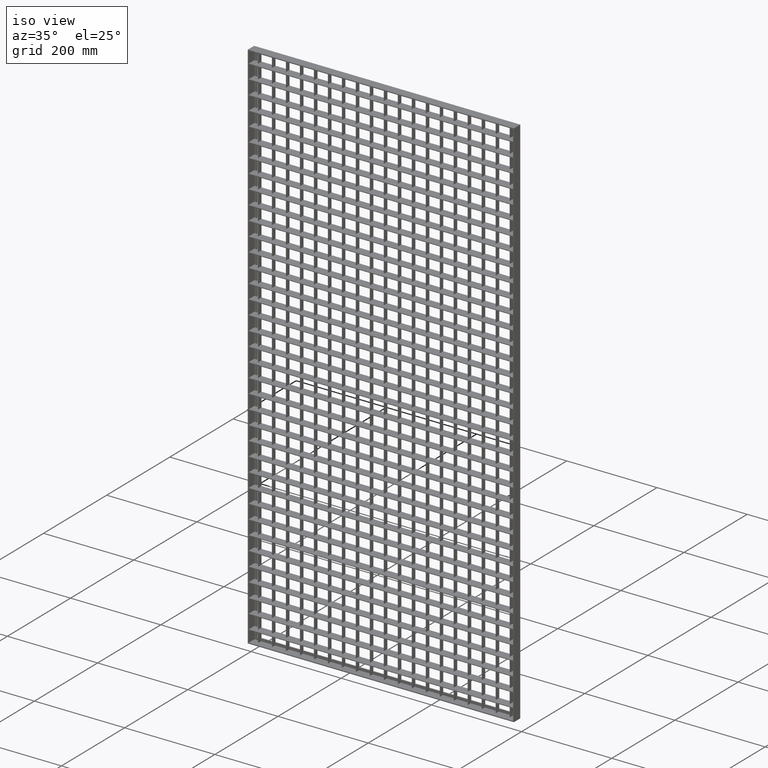
[diagram: clean part render]
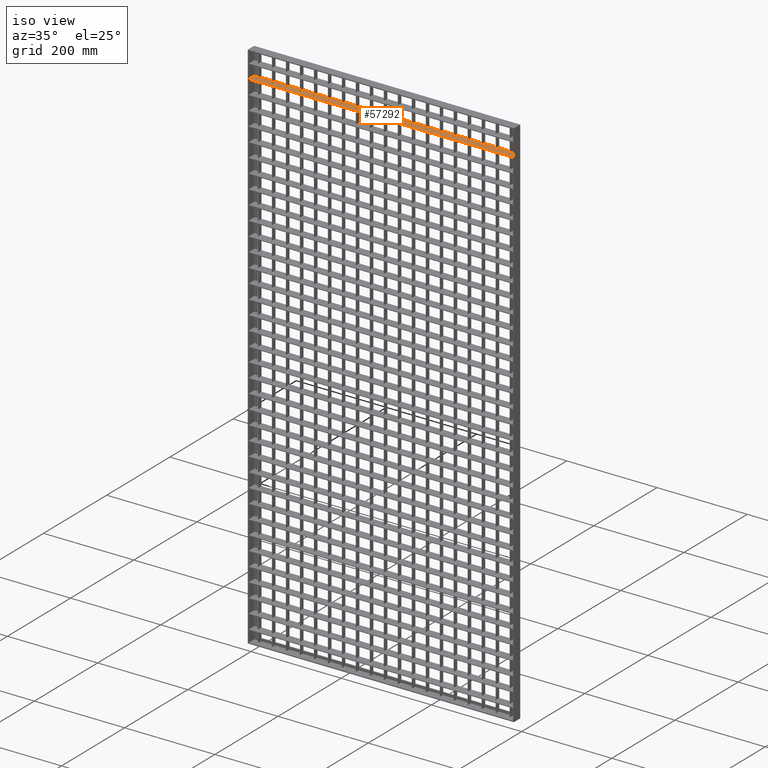
[diagram: same view with one face highlighted and labeled with its STEP entity id]
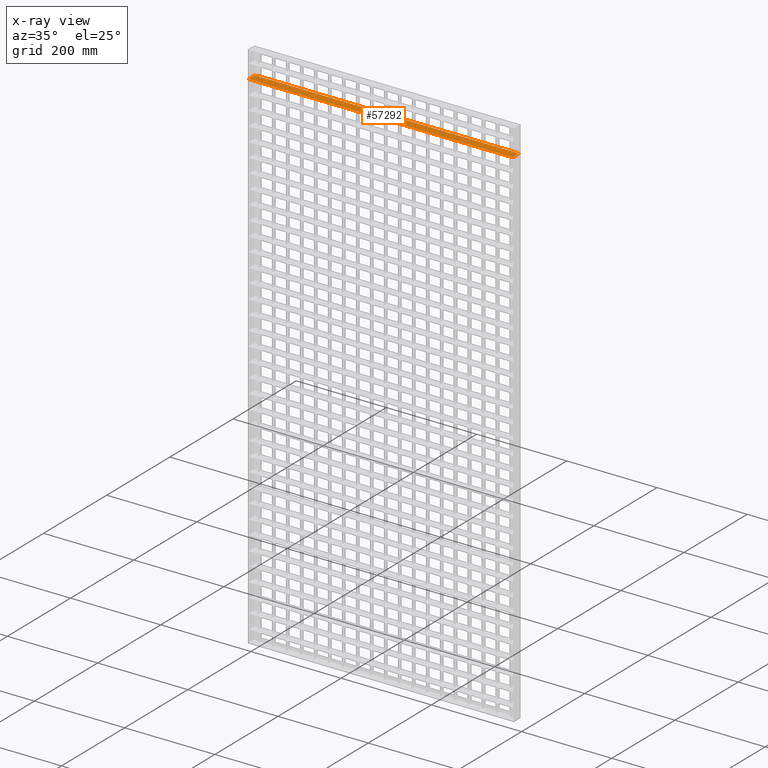
[diagram: x-ray of the same camera — body ghosted, the highlighted face saturated]
A machine part, iso view. The second image highlights one B-rep face of the part: STEP entity #57292.
The next image is the same camera in x-ray: the body ghosted, the highlighted face saturated — about 0% of this face is hidden behind the body in this view.
In plain terms, the highlighted planar face has unit normal (0, 0, 1).
Its self-contained STEP definition (entity closure, byte-faithful):
#22 = VECTOR ( 'NONE', #83904, 1000.000000000000000 ) ;
#121 = VECTOR ( 'NONE', #35979, 1000.000000000000000 ) ;
#166 = ORIENTED_EDGE ( 'NONE', *, *, #2497, .T. ) ;
#214 = CARTESIAN_POINT ( 'NONE',  ( 264.4999999999999400, 1.734723475976807100E-015, -58.75000000000019200 ) ) ;
#249 = CARTESIAN_POINT ( 'NONE',  ( 512.5000000000001100, 10.00000000000000200, -58.75000000000029800 ) ) ;
#291 = VECTOR ( 'NONE', #90207, 1000.000000000000000 ) ;
#466 = CARTESIAN_POINT ( 'NONE',  ( 588.0000000000001100, -10.00000000000000400, -58.75000000000019200 ) ) ;
#608 = EDGE_CURVE ( 'NONE', #3883, #43863, #49303, .T. ) ;
#1233 = VECTOR ( 'NONE', #70998, 1000.000000000000000 ) ;
#1453 = ORIENTED_EDGE ( 'NONE', *, *, #2130, .T. ) ;
#1910 = CARTESIAN_POINT ( 'NONE',  ( 481.5000000000000600, 1.412378878923504900E-015, -58.75000000000007800 ) ) ;
#2130 = EDGE_CURVE ( 'NONE', #97443, #4315, #16501, .T. ) ;
#2146 = EDGE_CURVE ( 'NONE', #23798, #18751, #52869, .T. ) ;
#2221 = ORIENTED_EDGE ( 'NONE', *, *, #52228, .T. ) ;
#2497 = EDGE_CURVE ( 'NONE', #82242, #75385, #69002, .T. ) ;
#2667 = VERTEX_POINT ( 'NONE', #14135 ) ;
#2748 = CARTESIAN_POINT ( 'NONE',  ( 449.5000000000001100, 1.718540578710342600E-015, -58.75000000000007800 ) ) ;
#2964 = CARTESIAN_POINT ( 'NONE',  ( 201.5000000000000000, -9.999999999999818800, -58.75000000000019200 ) ) ;
#3338 = DIRECTION ( 'NONE',  ( 0.0000000000000000000, -1.000000000000000000, 0.0000000000000000000 ) ) ;
#3420 = EDGE_CURVE ( 'NONE', #88207, #56527, #26356, .T. ) ;
#3707 = CARTESIAN_POINT ( 'NONE',  ( 608.0561711201316900, 1.734723475976807100E-013, -58.75000000000019200 ) ) ;
#3750 = LINE ( 'NONE', #62251, #97753 ) ;
#3875 = LINE ( 'NONE', #87632, #83907 ) ;
#3883 = VERTEX_POINT ( 'NONE', #15665 ) ;
#3945 = CARTESIAN_POINT ( 'NONE',  ( 78.50000000000001400, 10.00000000000002100, -58.75000000000019200 ) ) ;
#4147 = VERTEX_POINT ( 'NONE', #68828 ) ;
#4163 = DIRECTION ( 'NONE',  ( -1.000000000000000000, -3.061616997868382600E-016, 0.0000000000000000000 ) ) ;
#4315 = VERTEX_POINT ( 'NONE', #94412 ) ;
#4513 = ORIENTED_EDGE ( 'NONE', *, *, #101816, .F. ) ;
#4957 = VECTOR ( 'NONE', #6327, 1000.000000000000000 ) ;
#5063 = CARTESIAN_POINT ( 'NONE',  ( 608.0561711201316900, 10.00000000000018300, -58.75000000000019200 ) ) ;
#5285 = EDGE_CURVE ( 'NONE', #56755, #84041, #72562, .T. ) ;
#5805 = VERTEX_POINT ( 'NONE', #14105 ) ;
#5899 = DIRECTION ( 'NONE',  ( 1.000000000000000000, 3.061616997868373300E-016, -0.0000000000000000000 ) ) ;
#5990 = LINE ( 'NONE', #14890, #42455 ) ;
#6327 = DIRECTION ( 'NONE',  ( -0.0000000000000000000, 1.000000000000000000, 0.0000000000000000000 ) ) ;
#6426 = VERTEX_POINT ( 'NONE', #15023 ) ;
#6492 = ORIENTED_EDGE ( 'NONE', *, *, #98184, .F. ) ;
#6794 = CARTESIAN_POINT ( 'NONE',  ( 170.4999999999999700, -9.999999999999818800, -58.75000000000019200 ) ) ;
#6899 = CARTESIAN_POINT ( 'NONE',  ( 608.0561711201316900, 10.00000000000018300, -58.75000000000019200 ) ) ;
#7071 = VECTOR ( 'NONE', #22661, 1000.000000000000000 ) ;
#7079 = CARTESIAN_POINT ( 'NONE',  ( 139.4999999999999400, -9.999999999999818800, -58.75000000000019200 ) ) ;
#7453 = LINE ( 'NONE', #12905, #55043 ) ;
#7640 = LINE ( 'NONE', #44378, #48969 ) ;
#7795 = VERTEX_POINT ( 'NONE', #47553 ) ;
#7888 = DIRECTION ( 'NONE',  ( -0.0000000000000000000, 1.000000000000000000, 0.0000000000000000000 ) ) ;
#8359 = CARTESIAN_POINT ( 'NONE',  ( 388.5000000000000600, 1.412378878923504900E-015, -58.75000000000007800 ) ) ;
#8536 = CARTESIAN_POINT ( 'NONE',  ( 201.4999999999999700, 10.00000000000000200, -58.75000000000007800 ) ) ;
#8748 = CARTESIAN_POINT ( 'NONE',  ( 608.0561711201316900, -5.551115123125782700E-014, -58.75000000000019200 ) ) ;
#9375 = CARTESIAN_POINT ( 'NONE',  ( 202.5000000000000000, 1.734723475976807100E-015, -58.75000000000019200 ) ) ;
#9799 = CARTESIAN_POINT ( 'NONE',  ( 357.5000000000001700, 1.412378878923504900E-015, -58.75000000000007800 ) ) ;
#9979 = VERTEX_POINT ( 'NONE', #8536 ) ;
#10054 = CARTESIAN_POINT ( 'NONE',  ( 608.0561711201316900, 10.00000000000018300, -58.75000000000019200 ) ) ;
#10272 = CARTESIAN_POINT ( 'NONE',  ( 263.4999999999999400, -9.999999999999818800, -58.75000000000019200 ) ) ;
#10377 = VERTEX_POINT ( 'NONE', #53611 ) ;
#10904 = CARTESIAN_POINT ( 'NONE',  ( 608.0561711201316900, 10.00000000000018300, -58.75000000000019200 ) ) ;
#10980 = VECTOR ( 'NONE', #7888, 1000.000000000000000 ) ;
#11225 = VERTEX_POINT ( 'NONE', #466 ) ;
#11273 = LINE ( 'NONE', #32892, #57664 ) ;
#11382 = ORIENTED_EDGE ( 'NONE', *, *, #19569, .T. ) ;
#11390 = ORIENTED_EDGE ( 'NONE', *, *, #96115, .F. ) ;
#11566 = ORIENTED_EDGE ( 'NONE', *, *, #77090, .T. ) ;
#12000 = CARTESIAN_POINT ( 'NONE',  ( 15.49999999999995700, 10.00000000000000200, -58.75000000000007800 ) ) ;
#12314 = EDGE_CURVE ( 'NONE', #77343, #23798, #76865, .T. ) ;
#12328 = ORIENTED_EDGE ( 'NONE', *, *, #19727, .T. ) ;
#12739 = VERTEX_POINT ( 'NONE', #86623 ) ;
#12796 = CARTESIAN_POINT ( 'NONE',  ( 608.0561711201316900, 1.075528555105620400E-013, -58.75000000000019200 ) ) ;
#12905 = CARTESIAN_POINT ( 'NONE',  ( 574.5000000000001100, -9.999999999999818800, -58.75000000000019200 ) ) ;
#12947 = VERTEX_POINT ( 'NONE', #31934 ) ;
#13749 = CARTESIAN_POINT ( 'NONE',  ( 449.5000000000001100, -9.999999999999818800, -58.75000000000019200 ) ) ;
#13924 = ORIENTED_EDGE ( 'NONE', *, *, #73592, .T. ) ;
#14044 = ORIENTED_EDGE ( 'NONE', *, *, #48716, .T. ) ;
#14105 = CARTESIAN_POINT ( 'NONE',  ( 7.999999999999996400, 10.00000000000000200, -58.75000000000029800 ) ) ;
#14135 = CARTESIAN_POINT ( 'NONE',  ( 233.4999999999999700, 10.00000000000006800, -58.75000000000019200 ) ) ;
#14311 = VERTEX_POINT ( 'NONE', #90062 ) ;
#14494 = VERTEX_POINT ( 'NONE', #45902 ) ;
#14531 = ORIENTED_EDGE ( 'NONE', *, *, #42954, .F. ) ;
#14749 = DIRECTION ( 'NONE',  ( 0.0000000000000000000, -1.000000000000000000, 0.0000000000000000000 ) ) ;
#14841 = CARTESIAN_POINT ( 'NONE',  ( 608.0561711201316900, 10.00000000000018300, -58.75000000000019200 ) ) ;
#14890 = CARTESIAN_POINT ( 'NONE',  ( 264.4999999999999400, -9.999999999999818800, -58.75000000000019200 ) ) ;
#14913 = VERTEX_POINT ( 'NONE', #34692 ) ;
#14970 = LINE ( 'NONE', #34264, #28850 ) ;
#15023 = CARTESIAN_POINT ( 'NONE',  ( 16.49999999999995700, 10.00000000000000200, -58.75000000000019200 ) ) ;
#15073 = VECTOR ( 'NONE', #71904, 1000.000000000000000 ) ;
#15254 = LINE ( 'NONE', #76811, #71594 ) ;
#15665 = CARTESIAN_POINT ( 'NONE',  ( 78.50000000000001400, 1.734723475976807100E-015, -58.75000000000019200 ) ) ;
#15926 = CARTESIAN_POINT ( 'NONE',  ( 542.5000000000001100, -9.999999999999818800, -58.75000000000019200 ) ) ;
#16046 = VECTOR ( 'NONE', #86128, 1000.000000000000000 ) ;
#16208 = LINE ( 'NONE', #83785, #98985 ) ;
#16339 = DIRECTION ( 'NONE',  ( -1.000000000000000000, 3.061616997868373300E-016, 0.0000000000000000000 ) ) ;
#16501 = LINE ( 'NONE', #103901, #94176 ) ;
#16549 = EDGE_CURVE ( 'NONE', #11225, #18751, #38271, .T. ) ;
#16720 = DIRECTION ( 'NONE',  ( -1.000000000000000000, 0.0000000000000000000, 0.0000000000000000000 ) ) ;
#16886 = DIRECTION ( 'NONE',  ( -1.000000000000000000, -3.061616997868382600E-016, 0.0000000000000000000 ) ) ;
#17121 = VECTOR ( 'NONE', #80324, 1000.000000000000000 ) ;
#17482 = VECTOR ( 'NONE', #42763, 1000.000000000000000 ) ;
#17598 = CARTESIAN_POINT ( 'NONE',  ( 481.5000000000000600, -9.999999999999818800, -58.75000000000019200 ) ) ;
#17698 = VECTOR ( 'NONE', #72055, 1000.000000000000000 ) ;
#17715 = ORIENTED_EDGE ( 'NONE', *, *, #54327, .T. ) ;
#17717 = VECTOR ( 'NONE', #100566, 1000.000000000000000 ) ;
#17773 = LINE ( 'NONE', #10904, #49133 ) ;
#17856 = DIRECTION ( 'NONE',  ( -1.000000000000000000, -3.061616997868382600E-016, 0.0000000000000000000 ) ) ;
#17859 = DIRECTION ( 'NONE',  ( -1.000000000000000000, 3.061616997868373300E-016, 0.0000000000000000000 ) ) ;
#17865 = CARTESIAN_POINT ( 'NONE',  ( 608.0561711201316900, 1.821459649775647400E-013, -58.75000000000019200 ) ) ;
#17877 = DIRECTION ( 'NONE',  ( 1.000000000000000000, 3.061616997868373300E-016, -0.0000000000000000000 ) ) ;
#18126 = LINE ( 'NONE', #24142, #31974 ) ;
#18194 = CARTESIAN_POINT ( 'NONE',  ( 608.0561711201316900, 10.00000000000018300, -58.75000000000019200 ) ) ;
#18378 = LINE ( 'NONE', #3707, #74607 ) ;
#18384 = VECTOR ( 'NONE', #55702, 1000.000000000000000 ) ;
#18650 = VECTOR ( 'NONE', #92323, 1000.000000000000000 ) ;
#18738 = LINE ( 'NONE', #18194, #17482 ) ;
#18751 = VERTEX_POINT ( 'NONE', #37886 ) ;
#18800 = CARTESIAN_POINT ( 'NONE',  ( 511.5000000000000600, 1.718540578710342600E-015, -58.75000000000007800 ) ) ;
#18814 = EDGE_CURVE ( 'NONE', #82443, #89670, #39089, .T. ) ;
#18905 = VECTOR ( 'NONE', #77195, 1000.000000000000000 ) ;
#19002 = CARTESIAN_POINT ( 'NONE',  ( 170.4999999999999700, 10.00000000000000200, -58.75000000000007800 ) ) ;
#19303 = LINE ( 'NONE', #59475, #101985 ) ;
#19327 = CARTESIAN_POINT ( 'NONE',  ( 608.0561711201316900, 10.00000000000018300, -58.75000000000019200 ) ) ;
#19458 = VERTEX_POINT ( 'NONE', #71998 ) ;
#19481 = VECTOR ( 'NONE', #37305, 1000.000000000000000 ) ;
#19508 = ORIENTED_EDGE ( 'NONE', *, *, #72167, .F. ) ;
#19569 = EDGE_CURVE ( 'NONE', #52580, #98102, #11273, .T. ) ;
#19693 = VERTEX_POINT ( 'NONE', #18800 ) ;
#19718 = VERTEX_POINT ( 'NONE', #50966 ) ;
#19727 = EDGE_CURVE ( 'NONE', #19693, #4147, #14970, .T. ) ;
#19731 = ORIENTED_EDGE ( 'NONE', *, *, #50074, .F. ) ;
#20003 = LINE ( 'NONE', #57599, #48812 ) ;
#20042 = EDGE_CURVE ( 'NONE', #82242, #32564, #73740, .T. ) ;
#20183 = CARTESIAN_POINT ( 'NONE',  ( 46.49999999999998600, -9.999999999999818800, -58.75000000000019200 ) ) ;
#20353 = CARTESIAN_POINT ( 'NONE',  ( 608.0561711201316900, -7.459310946700270500E-014, -58.75000000000019200 ) ) ;
#20451 = CARTESIAN_POINT ( 'NONE',  ( 608.0561711201316900, 10.00000000000018300, -58.75000000000019200 ) ) ;
#20513 = ORIENTED_EDGE ( 'NONE', *, *, #56718, .T. ) ;
#20524 = CARTESIAN_POINT ( 'NONE',  ( 7.999999999999996400, 8.000000000000001800, -58.75000000000029800 ) ) ;
#20643 = EDGE_CURVE ( 'NONE', #51971, #32971, #27411, .T. ) ;
#20995 = VECTOR ( 'NONE', #16886, 1000.000000000000000 ) ;
#21022 = CARTESIAN_POINT ( 'NONE',  ( 295.5000000000000000, 10.00000000000008700, -58.75000000000019200 ) ) ;
#21075 = VECTOR ( 'NONE', #46666, 1000.000000000000000 ) ;
#21237 = LINE ( 'NONE', #94625, #82548 ) ;
#21366 = DIRECTION ( 'NONE',  ( 0.0000000000000000000, -1.000000000000000000, 0.0000000000000000000 ) ) ;
#21368 = LINE ( 'NONE', #86977, #15073 ) ;
#21753 = DIRECTION ( 'NONE',  ( -0.0000000000000000000, 1.000000000000000000, 0.0000000000000000000 ) ) ;
#21844 = DIRECTION ( 'NONE',  ( 0.0000000000000000000, -1.000000000000000000, 0.0000000000000000000 ) ) ;
#22161 = EDGE_CURVE ( 'NONE', #101639, #28836, #3750, .T. ) ;
#22308 = VERTEX_POINT ( 'NONE', #40318 ) ;
#22661 = DIRECTION ( 'NONE',  ( -1.000000000000000000, 3.061616997868373300E-016, 0.0000000000000000000 ) ) ;
#22758 = CARTESIAN_POINT ( 'NONE',  ( 109.4999999999999900, 1.734723475976807100E-015, -58.75000000000019200 ) ) ;
#22913 = EDGE_CURVE ( 'NONE', #32564, #59982, #74960, .T. ) ;
#23201 = CARTESIAN_POINT ( 'NONE',  ( 264.4999999999999400, 10.00000000000007600, -58.75000000000019200 ) ) ;
#23316 = ORIENTED_EDGE ( 'NONE', *, *, #22161, .T. ) ;
#23360 = CARTESIAN_POINT ( 'NONE',  ( 232.4999999999999700, 1.245557174870220300E-015, -58.75000000000019200 ) ) ;
#23415 = LINE ( 'NONE', #24861, #40942 ) ;
#23417 = DIRECTION ( 'NONE',  ( 1.000000000000000000, 3.061616997868373300E-016, -0.0000000000000000000 ) ) ;
#23464 = ORIENTED_EDGE ( 'NONE', *, *, #53537, .T. ) ;
#23626 = LINE ( 'NONE', #79877, #72370 ) ;
#23655 = DIRECTION ( 'NONE',  ( -1.000000000000000000, -3.061616997868382600E-016, 0.0000000000000000000 ) ) ;
#23662 = DIRECTION ( 'NONE',  ( -1.000000000000000000, -3.061616997868382600E-016, 0.0000000000000000000 ) ) ;
#23798 = VERTEX_POINT ( 'NONE', #100058 ) ;
#24055 = CARTESIAN_POINT ( 'NONE',  ( 232.4999999999999700, 10.00000000000000200, -58.75000000000007800 ) ) ;
#24142 = CARTESIAN_POINT ( 'NONE',  ( 77.50000000000001400, -9.999999999999818800, -58.75000000000019200 ) ) ;
#24203 = VECTOR ( 'NONE', #62926, 1000.000000000000000 ) ;
#24467 = LINE ( 'NONE', #14841, #82039 ) ;
#24480 = ORIENTED_EDGE ( 'NONE', *, *, #34194, .F. ) ;
#24603 = ORIENTED_EDGE ( 'NONE', *, *, #43538, .T. ) ;
#24791 = CARTESIAN_POINT ( 'NONE',  ( 480.5000000000000600, -9.999999999999818800, -58.75000000000019200 ) ) ;
#24861 = CARTESIAN_POINT ( 'NONE',  ( 294.9999999999999400, 8.000000000000001800, -58.75000000000019200 ) ) ;
#24944 = CARTESIAN_POINT ( 'NONE',  ( 608.0561711201316900, 10.00000000000018300, -58.75000000000019200 ) ) ;
#25025 = CARTESIAN_POINT ( 'NONE',  ( 140.4999999999999700, 1.734723475976807100E-015, -58.75000000000019200 ) ) ;
#25159 = ORIENTED_EDGE ( 'NONE', *, *, #55317, .T. ) ;
#25184 = VERTEX_POINT ( 'NONE', #94588 ) ;
#25289 = CARTESIAN_POINT ( 'NONE',  ( 140.5000000000000000, 10.00000000000003900, -58.75000000000019200 ) ) ;
#25311 = CARTESIAN_POINT ( 'NONE',  ( 608.0561711201316900, 1.543903893619358300E-013, -58.75000000000019200 ) ) ;
#25777 = EDGE_CURVE ( 'NONE', #14311, #29683, #71714, .T. ) ;
#25970 = LINE ( 'NONE', #85382, #69718 ) ;
#25992 = LINE ( 'NONE', #67314, #60074 ) ;
#26356 = LINE ( 'NONE', #87177, #4957 ) ;
#26386 = VERTEX_POINT ( 'NONE', #29699 ) ;
#26789 = CARTESIAN_POINT ( 'NONE',  ( 294.5000000000000000, 10.00000000000000200, -58.75000000000007800 ) ) ;
#26817 = DIRECTION ( 'NONE',  ( 0.0000000000000000000, -1.000000000000000000, 0.0000000000000000000 ) ) ;
#27099 = CARTESIAN_POINT ( 'NONE',  ( 387.5000000000000600, 1.718540578710342600E-015, -58.75000000000007800 ) ) ;
#27362 = LINE ( 'NONE', #62700, #74853 ) ;
#27411 = LINE ( 'NONE', #87511, #16046 ) ;
#27603 = VERTEX_POINT ( 'NONE', #52450 ) ;
#27605 = ORIENTED_EDGE ( 'NONE', *, *, #96191, .F. ) ;
#27964 = DIRECTION ( 'NONE',  ( 0.0000000000000000000, -1.000000000000000000, 0.0000000000000000000 ) ) ;
#27993 = CARTESIAN_POINT ( 'NONE',  ( 543.5000000000001100, 10.00000000000000200, -58.75000000000029800 ) ) ;
#28467 = LINE ( 'NONE', #55471, #7071 ) ;
#28565 = LINE ( 'NONE', #58591, #89844 ) ;
#28836 = VERTEX_POINT ( 'NONE', #8359 ) ;
#28850 = VECTOR ( 'NONE', #91228, 1000.000000000000000 ) ;
#28902 = VERTEX_POINT ( 'NONE', #67447 ) ;
#28942 = ORIENTED_EDGE ( 'NONE', *, *, #98683, .F. ) ;
#29002 = ORIENTED_EDGE ( 'NONE', *, *, #45416, .T. ) ;
#29227 = DIRECTION ( 'NONE',  ( 0.0000000000000000000, -1.000000000000000000, 0.0000000000000000000 ) ) ;
#29672 = DIRECTION ( 'NONE',  ( -1.000000000000000000, -3.061616997868382600E-016, 0.0000000000000000000 ) ) ;
#29683 = VERTEX_POINT ( 'NONE', #95261 ) ;
#29699 = CARTESIAN_POINT ( 'NONE',  ( 481.5000000000000600, 10.00000000000000200, -58.75000000000029800 ) ) ;
#29781 = VERTEX_POINT ( 'NONE', #32978 ) ;
#30012 = VERTEX_POINT ( 'NONE', #2748 ) ;
#30470 = ORIENTED_EDGE ( 'NONE', *, *, #65743, .T. ) ;
#30479 = LINE ( 'NONE', #95750, #76753 ) ;
#30625 = EDGE_CURVE ( 'NONE', #9979, #91210, #73932, .T. ) ;
#30770 = LINE ( 'NONE', #24944, #55644 ) ;
#31118 = ORIENTED_EDGE ( 'NONE', *, *, #45097, .T. ) ;
#31222 = DIRECTION ( 'NONE',  ( 0.0000000000000000000, -1.000000000000000000, 0.0000000000000000000 ) ) ;
#31331 = LINE ( 'NONE', #84077, #72609 ) ;
#31581 = CARTESIAN_POINT ( 'NONE',  ( 108.4999999999999900, -9.999999999999818800, -58.75000000000019200 ) ) ;
#31603 = VECTOR ( 'NONE', #29227, 1000.000000000000000 ) ;
#31698 = EDGE_CURVE ( 'NONE', #101149, #66592, #51139, .T. ) ;
#31934 = CARTESIAN_POINT ( 'NONE',  ( 326.5000000000001100, 1.412378878923504900E-015, -58.75000000000007800 ) ) ;
#31966 = ORIENTED_EDGE ( 'NONE', *, *, #97880, .F. ) ;
#31974 = VECTOR ( 'NONE', #48591, 1000.000000000000000 ) ;
#32098 = ORIENTED_EDGE ( 'NONE', *, *, #12314, .T. ) ;
#32228 = ORIENTED_EDGE ( 'NONE', *, *, #52892, .T. ) ;
#32459 = CARTESIAN_POINT ( 'NONE',  ( 294.5000000000000000, 1.145624325909250400E-015, -58.75000000000019200 ) ) ;
#32536 = VECTOR ( 'NONE', #67273, 1000.000000000000000 ) ;
#32564 = VERTEX_POINT ( 'NONE', #89566 ) ;
#32892 = CARTESIAN_POINT ( 'NONE',  ( 418.5000000000001100, -9.999999999999818800, -58.75000000000019200 ) ) ;
#32896 = EDGE_CURVE ( 'NONE', #28836, #103613, #28467, .T. ) ;
#32971 = VERTEX_POINT ( 'NONE', #23360 ) ;
#32978 = CARTESIAN_POINT ( 'NONE',  ( 171.5000000000000300, 10.00000000000004800, -58.75000000000019200 ) ) ;
#33070 = LINE ( 'NONE', #40257, #61795 ) ;
#33075 = LINE ( 'NONE', #91015, #70521 ) ;
#33158 = VERTEX_POINT ( 'NONE', #1910 ) ;
#33873 = ORIENTED_EDGE ( 'NONE', *, *, #41099, .T. ) ;
#33986 = LINE ( 'NONE', #8748, #95316 ) ;
#34029 = DIRECTION ( 'NONE',  ( -0.0000000000000000000, 1.000000000000000000, 0.0000000000000000000 ) ) ;
#34039 = VERTEX_POINT ( 'NONE', #27993 ) ;
#34041 = DIRECTION ( 'NONE',  ( 1.000000000000000000, 3.061616997868373300E-016, -0.0000000000000000000 ) ) ;
#34194 = EDGE_CURVE ( 'NONE', #40088, #75385, #66472, .T. ) ;
#34264 = CARTESIAN_POINT ( 'NONE',  ( 511.5000000000000600, -9.999999999999818800, -58.75000000000019200 ) ) ;
#34565 = EDGE_CURVE ( 'NONE', #83578, #14913, #51310, .T. ) ;
#34692 = CARTESIAN_POINT ( 'NONE',  ( 263.4999999999999400, 2.062952488378132800E-015, -58.75000000000019200 ) ) ;
#34735 = EDGE_CURVE ( 'NONE', #93598, #19693, #31331, .T. ) ;
#34809 = DIRECTION ( 'NONE',  ( -1.000000000000000000, -3.061616997868382600E-016, 0.0000000000000000000 ) ) ;
#34964 = CARTESIAN_POINT ( 'NONE',  ( 108.4999999999999900, 10.00000000000000200, -58.75000000000007800 ) ) ;
#34984 = ORIENTED_EDGE ( 'NONE', *, *, #93932, .T. ) ;
#35214 = ORIENTED_EDGE ( 'NONE', *, *, #56020, .F. ) ;
#35226 = ORIENTED_EDGE ( 'NONE', *, *, #20042, .F. ) ;
#35582 = ORIENTED_EDGE ( 'NONE', *, *, #30625, .F. ) ;
#35979 = DIRECTION ( 'NONE',  ( -1.000000000000000000, -3.061616997868382600E-016, 0.0000000000000000000 ) ) ;
#36245 = DIRECTION ( 'NONE',  ( -1.000000000000000000, 3.061616997868373300E-016, 0.0000000000000000000 ) ) ;
#36321 = DIRECTION ( 'NONE',  ( 1.000000000000000000, 3.061616997868373300E-016, -0.0000000000000000000 ) ) ;
#36409 = EDGE_CURVE ( 'NONE', #86535, #34039, #43360, .T. ) ;
#36533 = CARTESIAN_POINT ( 'NONE',  ( 295.5000000000000000, 1.734723475976807100E-015, -58.75000000000019200 ) ) ;
#36561 = LINE ( 'NONE', #88478, #91640 ) ;
#36674 = CARTESIAN_POINT ( 'NONE',  ( 450.5000000000001100, -9.999999999999818800, -58.75000000000019200 ) ) ;
#36712 = ORIENTED_EDGE ( 'NONE', *, *, #46420, .T. ) ;
#37173 = ORIENTED_EDGE ( 'NONE', *, *, #77351, .F. ) ;
#37305 = DIRECTION ( 'NONE',  ( -0.0000000000000000000, 1.000000000000000000, 0.0000000000000000000 ) ) ;
#37886 = CARTESIAN_POINT ( 'NONE',  ( 2.000000000000001800, -10.00000000000000400, -58.75000000000019200 ) ) ;
#37964 = LINE ( 'NONE', #89503, #69168 ) ;
#38271 = LINE ( 'NONE', #91056, #47059 ) ;
#38343 = ORIENTED_EDGE ( 'NONE', *, *, #98964, .T. ) ;
#38365 = VERTEX_POINT ( 'NONE', #60085 ) ;
#38480 = CARTESIAN_POINT ( 'NONE',  ( 233.4999999999999700, -9.999999999999818800, -58.75000000000019200 ) ) ;
#38528 = LINE ( 'NONE', #39841, #17121 ) ;
#38692 = LINE ( 'NONE', #15926, #10980 ) ;
#39089 = LINE ( 'NONE', #55246, #17698 ) ;
#39103 = FACE_OUTER_BOUND ( 'NONE', #102932, .T. ) ;
#39182 = ORIENTED_EDGE ( 'NONE', *, *, #608, .F. ) ;
#39220 = VECTOR ( 'NONE', #63262, 1000.000000000000000 ) ;
#39293 = VERTEX_POINT ( 'NONE', #74653 ) ;
#39427 = ORIENTED_EDGE ( 'NONE', *, *, #81527, .F. ) ;
#39549 = VECTOR ( 'NONE', #17877, 1000.000000000000000 ) ;
#39767 = EDGE_CURVE ( 'NONE', #22308, #56050, #33070, .T. ) ;
#39771 = ORIENTED_EDGE ( 'NONE', *, *, #89178, .T. ) ;
#39841 = CARTESIAN_POINT ( 'NONE',  ( 582.0000000000001100, 8.000000000000001800, -58.75000000000029800 ) ) ;
#40088 = VERTEX_POINT ( 'NONE', #25025 ) ;
#40140 = LINE ( 'NONE', #46117, #101477 ) ;
#40257 = CARTESIAN_POINT ( 'NONE',  ( 608.0561711201316900, 10.00000000000018300, -58.75000000000019200 ) ) ;
#40318 = CARTESIAN_POINT ( 'NONE',  ( 542.5000000000001100, 10.00000000000016200, -58.75000000000019200 ) ) ;
#40340 = LINE ( 'NONE', #70012, #31603 ) ;
#40436 = DIRECTION ( 'NONE',  ( -1.000000000000000000, -3.061616997868382600E-016, 0.0000000000000000000 ) ) ;
#40587 = EDGE_CURVE ( 'NONE', #19718, #86535, #92881, .T. ) ;
#40842 = LINE ( 'NONE', #13749, #19481 ) ;
#40929 = ORIENTED_EDGE ( 'NONE', *, *, #87597, .F. ) ;
#40942 = VECTOR ( 'NONE', #56968, 1000.000000000000000 ) ;
#41099 = EDGE_CURVE ( 'NONE', #7795, #30012, #73956, .T. ) ;
#41125 = CARTESIAN_POINT ( 'NONE',  ( 582.0000000000001100, 8.000000000000001800, -58.75000000000029800 ) ) ;
#41231 = VECTOR ( 'NONE', #43162, 1000.000000000000000 ) ;
#41666 = ORIENTED_EDGE ( 'NONE', *, *, #54338, .T. ) ;
#41984 = DIRECTION ( 'NONE',  ( -0.0000000000000000000, 1.000000000000000000, 0.0000000000000000000 ) ) ;
#42007 = ORIENTED_EDGE ( 'NONE', *, *, #48091, .T. ) ;
#42026 = ORIENTED_EDGE ( 'NONE', *, *, #16549, .F. ) ;
#42455 = VECTOR ( 'NONE', #77915, 1000.000000000000000 ) ;
#42763 = DIRECTION ( 'NONE',  ( -1.000000000000000000, -3.061616997868382600E-016, 0.0000000000000000000 ) ) ;
#42954 = EDGE_CURVE ( 'NONE', #32971, #76455, #64837, .T. ) ;
#43162 = DIRECTION ( 'NONE',  ( 1.000000000000000000, 3.061616997868373300E-016, -0.0000000000000000000 ) ) ;
#43360 = LINE ( 'NONE', #20451, #48347 ) ;
#43423 = VERTEX_POINT ( 'NONE', #94738 ) ;
#43475 = VERTEX_POINT ( 'NONE', #32459 ) ;
#43538 = EDGE_CURVE ( 'NONE', #103384, #101149, #38528, .T. ) ;
#43624 = VECTOR ( 'NONE', #23417, 1000.000000000000000 ) ;
#43863 = VERTEX_POINT ( 'NONE', #3945 ) ;
#44298 = EDGE_CURVE ( 'NONE', #43423, #64077, #70756, .T. ) ;
#44378 = CARTESIAN_POINT ( 'NONE',  ( 543.5000000000001100, -9.999999999999818800, -58.75000000000019200 ) ) ;
#44545 = VERTEX_POINT ( 'NONE', #62441 ) ;
#44586 = LINE ( 'NONE', #60952, #52056 ) ;
#44814 = VECTOR ( 'NONE', #91755, 1000.000000000000000 ) ;
#44911 = LINE ( 'NONE', #48742, #103757 ) ;
#45097 = EDGE_CURVE ( 'NONE', #12739, #55498, #40340, .T. ) ;
#45415 = CARTESIAN_POINT ( 'NONE',  ( 171.5000000000000000, 1.734723475976807100E-015, -58.75000000000019200 ) ) ;
#45416 = EDGE_CURVE ( 'NONE', #97749, #52580, #33986, .T. ) ;
#45452 = LINE ( 'NONE', #82453, #291 ) ;
#45553 = CARTESIAN_POINT ( 'NONE',  ( 78.50000000000001400, -9.999999999999818800, -58.75000000000019200 ) ) ;
#45902 = CARTESIAN_POINT ( 'NONE',  ( 387.5000000000000600, 10.00000000000011500, -58.75000000000019200 ) ) ;
#46117 = CARTESIAN_POINT ( 'NONE',  ( 325.5000000000001100, -9.999999999999818800, -58.75000000000019200 ) ) ;
#46123 = CARTESIAN_POINT ( 'NONE',  ( 574.5000000000001100, 10.00000000000000200, -58.75000000000029800 ) ) ;
#46387 = LINE ( 'NONE', #31581, #1233 ) ;
#46403 = VERTEX_POINT ( 'NONE', #214 ) ;
#46420 = EDGE_CURVE ( 'NONE', #102531, #44545, #54868, .T. ) ;
#46627 = CARTESIAN_POINT ( 'NONE',  ( 608.0561711201316900, -9.999999999999818800, -58.75000000000019200 ) ) ;
#46666 = DIRECTION ( 'NONE',  ( -0.0000000000000000000, 1.000000000000000000, 0.0000000000000000000 ) ) ;
#46980 = LINE ( 'NONE', #57383, #92056 ) ;
#47059 = VECTOR ( 'NONE', #59161, 1000.000000000000000 ) ;
#47089 = EDGE_CURVE ( 'NONE', #86853, #43863, #47309, .T. ) ;
#47106 = ORIENTED_EDGE ( 'NONE', *, *, #75368, .T. ) ;
#47160 = DIRECTION ( 'NONE',  ( -0.0000000000000000000, 1.000000000000000000, 0.0000000000000000000 ) ) ;
#47214 = CARTESIAN_POINT ( 'NONE',  ( 2.000000000000003600, -10.00000000000000000, -58.75000000000029800 ) ) ;
#47309 = LINE ( 'NONE', #87260, #20995 ) ;
#47535 = DIRECTION ( 'NONE',  ( -1.000000000000000000, -3.061616997868382600E-016, 0.0000000000000000000 ) ) ;
#47553 = CARTESIAN_POINT ( 'NONE',  ( 450.5000000000001100, 1.412378878923504900E-015, -58.75000000000007800 ) ) ;
#47573 = ORIENTED_EDGE ( 'NONE', *, *, #98518, .T. ) ;
#48041 = CARTESIAN_POINT ( 'NONE',  ( 109.4999999999999900, -9.999999999999818800, -58.75000000000019200 ) ) ;
#48091 = EDGE_CURVE ( 'NONE', #30012, #79490, #40842, .T. ) ;
#48130 = VECTOR ( 'NONE', #50287, 1000.000000000000000 ) ;
#48347 = VECTOR ( 'NONE', #76384, 1000.000000000000000 ) ;
#48361 = LINE ( 'NONE', #62229, #82165 ) ;
#48589 = VERTEX_POINT ( 'NONE', #93150 ) ;
#48591 = DIRECTION ( 'NONE',  ( 0.0000000000000000000, -1.000000000000000000, 0.0000000000000000000 ) ) ;
#48716 = EDGE_CURVE ( 'NONE', #44545, #19458, #24467, .T. ) ;
#48742 = CARTESIAN_POINT ( 'NONE',  ( 7.999999999999996400, 8.000000000000001800, -58.75000000000029800 ) ) ;
#48812 = VECTOR ( 'NONE', #88086, 1000.000000000000000 ) ;
#48857 = VECTOR ( 'NONE', #58962, 1000.000000000000000 ) ;
#48969 = VECTOR ( 'NONE', #59701, 1000.000000000000000 ) ;
#49133 = VECTOR ( 'NONE', #34809, 1000.000000000000000 ) ;
#49258 = ORIENTED_EDGE ( 'NONE', *, *, #34565, .F. ) ;
#49303 = LINE ( 'NONE', #45553, #94397 ) ;
#49470 = VERTEX_POINT ( 'NONE', #23201 ) ;
#49794 = EDGE_CURVE ( 'NONE', #99172, #50497, #96713, .T. ) ;
#49824 = LINE ( 'NONE', #19327, #44814 ) ;
#50074 = EDGE_CURVE ( 'NONE', #62072, #79316, #3875, .T. ) ;
#50287 = DIRECTION ( 'NONE',  ( -0.0000000000000000000, 1.000000000000000000, 0.0000000000000000000 ) ) ;
#50453 = CARTESIAN_POINT ( 'NONE',  ( 512.5000000000001100, 1.412378878923504900E-015, -58.75000000000007800 ) ) ;
#50497 = VERTEX_POINT ( 'NONE', #71780 ) ;
#50625 = CARTESIAN_POINT ( 'NONE',  ( 171.5000000000000000, -9.999999999999818800, -58.75000000000019200 ) ) ;
#50966 = CARTESIAN_POINT ( 'NONE',  ( 573.5000000000001100, 1.718540578710342600E-015, -58.75000000000007800 ) ) ;
#51139 = LINE ( 'NONE', #68443, #81159 ) ;
#51310 = LINE ( 'NONE', #10272, #54998 ) ;
#51971 = VERTEX_POINT ( 'NONE', #24055 ) ;
#52056 = VECTOR ( 'NONE', #86497, 1000.000000000000000 ) ;
#52228 = EDGE_CURVE ( 'NONE', #39293, #19718, #25992, .T. ) ;
#52438 = ORIENTED_EDGE ( 'NONE', *, *, #75387, .T. ) ;
#52450 = CARTESIAN_POINT ( 'NONE',  ( 543.5000000000001100, 1.412378878923504900E-015, -58.75000000000007800 ) ) ;
#52579 = VECTOR ( 'NONE', #47535, 1000.000000000000000 ) ;
#52580 = VERTEX_POINT ( 'NONE', #57774 ) ;
#52763 = CARTESIAN_POINT ( 'NONE',  ( 480.5000000000000600, 1.718540578710342600E-015, -58.75000000000007800 ) ) ;
#52869 = LINE ( 'NONE', #47214, #39220 ) ;
#52892 = EDGE_CURVE ( 'NONE', #66592, #39293, #7453, .T. ) ;
#53273 = ORIENTED_EDGE ( 'NONE', *, *, #67282, .F. ) ;
#53537 = EDGE_CURVE ( 'NONE', #87585, #57362, #40140, .T. ) ;
#53603 = ORIENTED_EDGE ( 'NONE', *, *, #61369, .T. ) ;
#53611 = CARTESIAN_POINT ( 'NONE',  ( 16.49999999999995700, 1.734723475976807100E-015, -58.75000000000019200 ) ) ;
#54156 = ORIENTED_EDGE ( 'NONE', *, *, #77159, .T. ) ;
#54327 = EDGE_CURVE ( 'NONE', #25184, #29683, #23626, .T. ) ;
#54334 = CARTESIAN_POINT ( 'NONE',  ( 418.5000000000001100, 10.00000000000012400, -58.75000000000019200 ) ) ;
#54338 = EDGE_CURVE ( 'NONE', #5805, #77343, #44911, .T. ) ;
#54868 = LINE ( 'NONE', #24791, #73676 ) ;
#54998 = VECTOR ( 'NONE', #26817, 1000.000000000000000 ) ;
#55043 = VECTOR ( 'NONE', #21366, 1000.000000000000000 ) ;
#55070 = ORIENTED_EDGE ( 'NONE', *, *, #100653, .T. ) ;
#55246 = CARTESIAN_POINT ( 'NONE',  ( 295.5000000000000000, -9.999999999999818800, -58.75000000000019200 ) ) ;
#55317 = EDGE_CURVE ( 'NONE', #95732, #12947, #44586, .T. ) ;
#55422 = CARTESIAN_POINT ( 'NONE',  ( 202.5000000000000000, 10.00000000000005700, -58.75000000000019200 ) ) ;
#55471 = CARTESIAN_POINT ( 'NONE',  ( 608.0561711201316900, -6.591949208711867000E-014, -58.75000000000019200 ) ) ;
#55498 = VERTEX_POINT ( 'NONE', #9799 ) ;
#55644 = VECTOR ( 'NONE', #17856, 1000.000000000000000 ) ;
#55690 = ORIENTED_EDGE ( 'NONE', *, *, #85774, .F. ) ;
#55702 = DIRECTION ( 'NONE',  ( -1.000000000000000000, 3.061616997868373300E-016, 0.0000000000000000000 ) ) ;
#55966 = ORIENTED_EDGE ( 'NONE', *, *, #31698, .T. ) ;
#56020 = EDGE_CURVE ( 'NONE', #25184, #38365, #18126, .T. ) ;
#56050 = VERTEX_POINT ( 'NONE', #249 ) ;
#56261 = CARTESIAN_POINT ( 'NONE',  ( 2.000000000000003600, 8.000000000000001800, -58.75000000000029800 ) ) ;
#56527 = VERTEX_POINT ( 'NONE', #55422 ) ;
#56718 = EDGE_CURVE ( 'NONE', #62072, #5805, #30479, .T. ) ;
#56752 = DIRECTION ( 'NONE',  ( -0.0000000000000000000, -1.000000000000000000, 0.0000000000000000000 ) ) ;
#56755 = VERTEX_POINT ( 'NONE', #63819 ) ;
#56828 = VECTOR ( 'NONE', #100203, 1000.000000000000000 ) ;
#56968 = DIRECTION ( 'NONE',  ( -1.000000000000000000, 0.0000000000000000000, 0.0000000000000000000 ) ) ;
#57292 = ADVANCED_FACE ( 'NONE', ( #39103 ), #63353, .T. ) ;
#57362 = VERTEX_POINT ( 'NONE', #65478 ) ;
#57383 = CARTESIAN_POINT ( 'NONE',  ( 387.5000000000000600, -9.999999999999818800, -58.75000000000019200 ) ) ;
#57599 = CARTESIAN_POINT ( 'NONE',  ( 608.0561711201316900, 10.00000000000018300, -58.75000000000019200 ) ) ;
#57664 = VECTOR ( 'NONE', #41984, 1000.000000000000000 ) ;
#57774 = CARTESIAN_POINT ( 'NONE',  ( 418.5000000000001100, 1.718540578710342600E-015, -58.75000000000007800 ) ) ;
#58255 = CARTESIAN_POINT ( 'NONE',  ( 419.5000000000001100, 1.412378878923504900E-015, -58.75000000000007800 ) ) ;
#58574 = CARTESIAN_POINT ( 'NONE',  ( 326.5000000000001100, 10.00000000000000200, -58.75000000000007800 ) ) ;
#58591 = CARTESIAN_POINT ( 'NONE',  ( 588.0000000000001100, -9.999999999999818800, -58.75000000000019200 ) ) ;
#58962 = DIRECTION ( 'NONE',  ( 0.0000000000000000000, -1.000000000000000000, 0.0000000000000000000 ) ) ;
#59017 = VERTEX_POINT ( 'NONE', #87682 ) ;
#59161 = DIRECTION ( 'NONE',  ( -1.000000000000000000, -3.061616997868382600E-016, 0.0000000000000000000 ) ) ;
#59475 = CARTESIAN_POINT ( 'NONE',  ( 608.0561711201316900, 10.00000000000018300, -58.75000000000019200 ) ) ;
#59512 = CARTESIAN_POINT ( 'NONE',  ( 419.5000000000001100, -9.999999999999818800, -58.75000000000019200 ) ) ;
#59701 = DIRECTION ( 'NONE',  ( 0.0000000000000000000, -1.000000000000000000, 0.0000000000000000000 ) ) ;
#59732 = EDGE_CURVE ( 'NONE', #98102, #101639, #87442, .T. ) ;
#59760 = ORIENTED_EDGE ( 'NONE', *, *, #101634, .T. ) ;
#59982 = VERTEX_POINT ( 'NONE', #45415 ) ;
#60028 = DIRECTION ( 'NONE',  ( 1.000000000000000000, 3.061616997868373300E-016, -0.0000000000000000000 ) ) ;
#60074 = VECTOR ( 'NONE', #36245, 1000.000000000000000 ) ;
#60085 = CARTESIAN_POINT ( 'NONE',  ( 77.50000000000001400, 6.280275592842356500E-016, -58.75000000000019200 ) ) ;
#60327 = ORIENTED_EDGE ( 'NONE', *, *, #72917, .T. ) ;
#60377 = CARTESIAN_POINT ( 'NONE',  ( 388.5000000000000600, 10.00000000000000200, -58.75000000000029800 ) ) ;
#60586 = EDGE_CURVE ( 'NONE', #46403, #49470, #5990, .T. ) ;
#60596 = VECTOR ( 'NONE', #75827, 1000.000000000000000 ) ;
#60952 = CARTESIAN_POINT ( 'NONE',  ( 326.5000000000001100, -9.999999999999818800, -58.75000000000019200 ) ) ;
#60989 = VECTOR ( 'NONE', #92092, 1000.000000000000000 ) ;
#61369 = EDGE_CURVE ( 'NONE', #12947, #87585, #87254, .T. ) ;
#61795 = VECTOR ( 'NONE', #72327, 1000.000000000000000 ) ;
#61842 = LINE ( 'NONE', #59512, #56828 ) ;
#62072 = VERTEX_POINT ( 'NONE', #12000 ) ;
#62229 = CARTESIAN_POINT ( 'NONE',  ( 608.0561711201316900, 1.630640067418198700E-013, -58.75000000000019200 ) ) ;
#62251 = CARTESIAN_POINT ( 'NONE',  ( 388.5000000000000600, -9.999999999999818800, -58.75000000000019200 ) ) ;
#62441 = CARTESIAN_POINT ( 'NONE',  ( 480.5000000000000600, 10.00000000000014200, -58.75000000000019200 ) ) ;
#62657 = EDGE_CURVE ( 'NONE', #59017, #97749, #61842, .T. ) ;
#62700 = CARTESIAN_POINT ( 'NONE',  ( 294.5000000000000000, -9.999999999999818800, -58.75000000000019200 ) ) ;
#62926 = DIRECTION ( 'NONE',  ( -0.0000000000000000000, 1.000000000000000000, 0.0000000000000000000 ) ) ;
#63097 = VECTOR ( 'NONE', #16720, 1000.000000000000000 ) ;
#63262 = DIRECTION ( 'NONE',  ( -0.0000000000000000000, -1.000000000000000000, 0.0000000000000000000 ) ) ;
#63353 = PLANE ( 'NONE',  #88198 ) ;
#63592 = LINE ( 'NONE', #48041, #21075 ) ;
#63688 = LINE ( 'NONE', #83545, #18650 ) ;
#63725 = ORIENTED_EDGE ( 'NONE', *, *, #103731, .T. ) ;
#63819 = CARTESIAN_POINT ( 'NONE',  ( 139.4999999999999700, 10.00000000000000200, -58.75000000000007800 ) ) ;
#63892 = EDGE_CURVE ( 'NONE', #38365, #3883, #48361, .T. ) ;
#64077 = VERTEX_POINT ( 'NONE', #22758 ) ;
#64232 = CARTESIAN_POINT ( 'NONE',  ( 356.5000000000001700, 1.718540578710342600E-015, -58.75000000000007800 ) ) ;
#64534 = CARTESIAN_POINT ( 'NONE',  ( 233.4999999999999700, 1.734723475976807100E-015, -58.75000000000019200 ) ) ;
#64837 = LINE ( 'NONE', #89893, #43624 ) ;
#65478 = CARTESIAN_POINT ( 'NONE',  ( 325.5000000000001100, 10.00000000000009600, -58.75000000000019200 ) ) ;
#65714 = CARTESIAN_POINT ( 'NONE',  ( 46.49999999999998600, 10.00000000000000200, -58.75000000000007800 ) ) ;
#65743 = EDGE_CURVE ( 'NONE', #14494, #12739, #33075, .T. ) ;
#66472 = LINE ( 'NONE', #84883, #18905 ) ;
#66592 = VERTEX_POINT ( 'NONE', #46123 ) ;
#67028 = CARTESIAN_POINT ( 'NONE',  ( 449.5000000000001100, 10.00000000000013300, -58.75000000000019200 ) ) ;
#67273 = DIRECTION ( 'NONE',  ( 0.0000000000000000000, -1.000000000000000000, 0.0000000000000000000 ) ) ;
#67282 = EDGE_CURVE ( 'NONE', #86853, #43423, #46387, .T. ) ;
#67314 = CARTESIAN_POINT ( 'NONE',  ( 608.0561711201316900, -8.673617379884035500E-015, -58.75000000000019200 ) ) ;
#67447 = CARTESIAN_POINT ( 'NONE',  ( 139.4999999999999400, 2.262818186300060400E-015, -58.75000000000019200 ) ) ;
#68443 = CARTESIAN_POINT ( 'NONE',  ( 608.0561711201316900, 10.00000000000018300, -58.75000000000019200 ) ) ;
#68531 = ORIENTED_EDGE ( 'NONE', *, *, #36409, .T. ) ;
#68693 = ORIENTED_EDGE ( 'NONE', *, *, #18814, .F. ) ;
#68788 = DIRECTION ( 'NONE',  ( -1.000000000000000000, -3.061616997868382600E-016, 0.0000000000000000000 ) ) ;
#68828 = CARTESIAN_POINT ( 'NONE',  ( 511.5000000000000600, 10.00000000000015300, -58.75000000000019200 ) ) ;
#69002 = LINE ( 'NONE', #100023, #121 ) ;
#69031 = VERTEX_POINT ( 'NONE', #103638 ) ;
#69168 = VECTOR ( 'NONE', #16339, 1000.000000000000000 ) ;
#69250 = DIRECTION ( 'NONE',  ( 1.000000000000000000, 3.061616997868373300E-016, -0.0000000000000000000 ) ) ;
#69718 = VECTOR ( 'NONE', #69250, 1000.000000000000000 ) ;
#69920 = CARTESIAN_POINT ( 'NONE',  ( 47.49999999999998600, -9.999999999999818800, -58.75000000000019200 ) ) ;
#69921 = VECTOR ( 'NONE', #75474, 1000.000000000000000 ) ;
#69982 = VECTOR ( 'NONE', #70822, 1000.000000000000000 ) ;
#70012 = CARTESIAN_POINT ( 'NONE',  ( 357.5000000000001700, -9.999999999999818800, -58.75000000000019200 ) ) ;
#70172 = LINE ( 'NONE', #5063, #83959 ) ;
#70521 = VECTOR ( 'NONE', #4163, 1000.000000000000000 ) ;
#70756 = LINE ( 'NONE', #25311, #39549 ) ;
#70822 = DIRECTION ( 'NONE',  ( 0.0000000000000000000, -1.000000000000000000, 0.0000000000000000000 ) ) ;
#70998 = DIRECTION ( 'NONE',  ( 0.0000000000000000000, -1.000000000000000000, 0.0000000000000000000 ) ) ;
#71128 = ORIENTED_EDGE ( 'NONE', *, *, #62657, .T. ) ;
#71594 = VECTOR ( 'NONE', #36321, 1000.000000000000000 ) ;
#71714 = LINE ( 'NONE', #69920, #24203 ) ;
#71780 = CARTESIAN_POINT ( 'NONE',  ( 46.49999999999998600, 1.545355721753093400E-015, -58.75000000000019200 ) ) ;
#71904 = DIRECTION ( 'NONE',  ( 1.000000000000000000, 3.061616997868373300E-016, -0.0000000000000000000 ) ) ;
#71998 = CARTESIAN_POINT ( 'NONE',  ( 450.5000000000001100, 10.00000000000000200, -58.75000000000029800 ) ) ;
#72003 = DIRECTION ( 'NONE',  ( -0.0000000000000000000, 1.000000000000000000, 0.0000000000000000000 ) ) ;
#72055 = DIRECTION ( 'NONE',  ( -0.0000000000000000000, 1.000000000000000000, 0.0000000000000000000 ) ) ;
#72167 = EDGE_CURVE ( 'NONE', #76455, #2667, #73918, .T. ) ;
#72327 = DIRECTION ( 'NONE',  ( -1.000000000000000000, -3.061616997868382600E-016, 0.0000000000000000000 ) ) ;
#72350 = ORIENTED_EDGE ( 'NONE', *, *, #97480, .T. ) ;
#72370 = VECTOR ( 'NONE', #40436, 1000.000000000000000 ) ;
#72562 = LINE ( 'NONE', #6899, #52579 ) ;
#72609 = VECTOR ( 'NONE', #84758, 1000.000000000000000 ) ;
#72917 = EDGE_CURVE ( 'NONE', #26386, #33158, #93845, .T. ) ;
#73018 = CARTESIAN_POINT ( 'NONE',  ( 15.49999999999995700, 7.279604082451686900E-016, -58.75000000000019200 ) ) ;
#73320 = ORIENTED_EDGE ( 'NONE', *, *, #40587, .T. ) ;
#73356 = ORIENTED_EDGE ( 'NONE', *, *, #49794, .F. ) ;
#73592 = EDGE_CURVE ( 'NONE', #9979, #29781, #18738, .T. ) ;
#73604 = ORIENTED_EDGE ( 'NONE', *, *, #97212, .F. ) ;
#73676 = VECTOR ( 'NONE', #95143, 1000.000000000000000 ) ;
#73740 = LINE ( 'NONE', #6794, #69982 ) ;
#73918 = LINE ( 'NONE', #38480, #81430 ) ;
#73932 = LINE ( 'NONE', #2964, #48857 ) ;
#73956 = LINE ( 'NONE', #76201, #22 ) ;
#74585 = ORIENTED_EDGE ( 'NONE', *, *, #83676, .T. ) ;
#74607 = VECTOR ( 'NONE', #60028, 1000.000000000000000 ) ;
#74653 = CARTESIAN_POINT ( 'NONE',  ( 574.5000000000001100, 1.412378878923504900E-015, -58.75000000000007800 ) ) ;
#74699 = DIRECTION ( 'NONE',  ( 0.0000000000000000000, -1.000000000000000000, 0.0000000000000000000 ) ) ;
#74853 = VECTOR ( 'NONE', #14749, 1000.000000000000000 ) ;
#74960 = LINE ( 'NONE', #91054, #41231 ) ;
#75310 = CARTESIAN_POINT ( 'NONE',  ( 109.4999999999999900, 10.00000000000003000, -58.75000000000019200 ) ) ;
#75368 = EDGE_CURVE ( 'NONE', #79490, #59017, #30770, .T. ) ;
#75385 = VERTEX_POINT ( 'NONE', #25289 ) ;
#75387 = EDGE_CURVE ( 'NONE', #103613, #14494, #46980, .T. ) ;
#75467 = ORIENTED_EDGE ( 'NONE', *, *, #5285, .T. ) ;
#75474 = DIRECTION ( 'NONE',  ( -1.000000000000000000, -3.061616997868382600E-016, 0.0000000000000000000 ) ) ;
#75827 = DIRECTION ( 'NONE',  ( 1.000000000000000000, 3.061616997868373300E-016, -0.0000000000000000000 ) ) ;
#76201 = CARTESIAN_POINT ( 'NONE',  ( 608.0561711201316900, -4.683753385137379200E-014, -58.75000000000019200 ) ) ;
#76384 = DIRECTION ( 'NONE',  ( -1.000000000000000000, -3.061616997868382600E-016, 0.0000000000000000000 ) ) ;
#76455 = VERTEX_POINT ( 'NONE', #64534 ) ;
#76753 = VECTOR ( 'NONE', #23655, 1000.000000000000000 ) ;
#76811 = CARTESIAN_POINT ( 'NONE',  ( 608.0561711201316900, 1.266348137463069200E-013, -58.75000000000019200 ) ) ;
#76865 = LINE ( 'NONE', #56261, #63097 ) ;
#77090 = EDGE_CURVE ( 'NONE', #27603, #48589, #37964, .T. ) ;
#77159 = EDGE_CURVE ( 'NONE', #33158, #102531, #45452, .T. ) ;
#77160 = CARTESIAN_POINT ( 'NONE',  ( 263.4999999999999400, 10.00000000000000200, -58.75000000000007800 ) ) ;
#77195 = DIRECTION ( 'NONE',  ( -0.0000000000000000000, 1.000000000000000000, 0.0000000000000000000 ) ) ;
#77343 = VERTEX_POINT ( 'NONE', #20524 ) ;
#77351 = EDGE_CURVE ( 'NONE', #91210, #88207, #15254, .T. ) ;
#77805 = ORIENTED_EDGE ( 'NONE', *, *, #84382, .T. ) ;
#77915 = DIRECTION ( 'NONE',  ( -0.0000000000000000000, 1.000000000000000000, 0.0000000000000000000 ) ) ;
#77924 = LINE ( 'NONE', #17865, #96801 ) ;
#78589 = LINE ( 'NONE', #20353, #60989 ) ;
#78672 = CARTESIAN_POINT ( 'NONE',  ( 573.5000000000001100, 10.00000000000017200, -58.75000000000019200 ) ) ;
#78770 = DIRECTION ( 'NONE',  ( 0.0000000000000000000, 0.0000000000000000000, 1.000000000000000000 ) ) ;
#78999 = ORIENTED_EDGE ( 'NONE', *, *, #47089, .T. ) ;
#79316 = VERTEX_POINT ( 'NONE', #73018 ) ;
#79389 = DIRECTION ( 'NONE',  ( -1.000000000000000000, -3.061616997868382600E-016, 0.0000000000000000000 ) ) ;
#79490 = VERTEX_POINT ( 'NONE', #67028 ) ;
#79877 = CARTESIAN_POINT ( 'NONE',  ( 608.0561711201316900, 10.00000000000018300, -58.75000000000019200 ) ) ;
#79932 = DIRECTION ( 'NONE',  ( 0.0000000000000000000, -1.000000000000000000, 0.0000000000000000000 ) ) ;
#80035 = ORIENTED_EDGE ( 'NONE', *, *, #85673, .F. ) ;
#80324 = DIRECTION ( 'NONE',  ( 0.0000000000000000000, 1.000000000000000000, -0.0000000000000000000 ) ) ;
#80978 = LINE ( 'NONE', #7079, #86008 ) ;
#81159 = VECTOR ( 'NONE', #68788, 1000.000000000000000 ) ;
#81430 = VECTOR ( 'NONE', #94069, 1000.000000000000000 ) ;
#81527 = EDGE_CURVE ( 'NONE', #59982, #29781, #86860, .T. ) ;
#81948 = ORIENTED_EDGE ( 'NONE', *, *, #63892, .F. ) ;
#82039 = VECTOR ( 'NONE', #23662, 1000.000000000000000 ) ;
#82165 = VECTOR ( 'NONE', #5899, 1000.000000000000000 ) ;
#82242 = VERTEX_POINT ( 'NONE', #19002 ) ;
#82252 = EDGE_CURVE ( 'NONE', #4147, #26386, #17773, .T. ) ;
#82374 = ORIENTED_EDGE ( 'NONE', *, *, #102988, .T. ) ;
#82443 = VERTEX_POINT ( 'NONE', #36533 ) ;
#82453 = CARTESIAN_POINT ( 'NONE',  ( 608.0561711201316900, -3.816391647148975600E-014, -58.75000000000019200 ) ) ;
#82548 = VECTOR ( 'NONE', #102675, 1000.000000000000000 ) ;
#83545 = CARTESIAN_POINT ( 'NONE',  ( 16.49999999999995700, -9.999999999999818800, -58.75000000000019200 ) ) ;
#83578 = VERTEX_POINT ( 'NONE', #77160 ) ;
#83676 = EDGE_CURVE ( 'NONE', #57362, #89670, #70172, .T. ) ;
#83785 = CARTESIAN_POINT ( 'NONE',  ( 608.0561711201316900, 10.00000000000018300, -58.75000000000019200 ) ) ;
#83904 = DIRECTION ( 'NONE',  ( -1.000000000000000000, 3.061616997868373300E-016, 0.0000000000000000000 ) ) ;
#83907 = VECTOR ( 'NONE', #79932, 1000.000000000000000 ) ;
#83959 = VECTOR ( 'NONE', #29672, 1000.000000000000000 ) ;
#84000 = VERTEX_POINT ( 'NONE', #26789 ) ;
#84041 = VERTEX_POINT ( 'NONE', #75310 ) ;
#84077 = CARTESIAN_POINT ( 'NONE',  ( 608.0561711201316900, -2.775557561562891400E-014, -58.75000000000019200 ) ) ;
#84382 = EDGE_CURVE ( 'NONE', #83578, #2667, #20003, .T. ) ;
#84758 = DIRECTION ( 'NONE',  ( -1.000000000000000000, 3.061616997868373300E-016, 0.0000000000000000000 ) ) ;
#84883 = CARTESIAN_POINT ( 'NONE',  ( 140.4999999999999700, -9.999999999999818800, -58.75000000000019200 ) ) ;
#85382 = CARTESIAN_POINT ( 'NONE',  ( 608.0561711201316900, 9.714451465470119700E-014, -58.75000000000019200 ) ) ;
#85422 = CARTESIAN_POINT ( 'NONE',  ( 573.5000000000001100, -9.999999999999818800, -58.75000000000019200 ) ) ;
#85494 = VECTOR ( 'NONE', #3338, 1000.000000000000000 ) ;
#85673 = EDGE_CURVE ( 'NONE', #50497, #14311, #18378, .T. ) ;
#85689 = ORIENTED_EDGE ( 'NONE', *, *, #59732, .T. ) ;
#85774 = EDGE_CURVE ( 'NONE', #14913, #46403, #102080, .T. ) ;
#86008 = VECTOR ( 'NONE', #21844, 1000.000000000000000 ) ;
#86128 = DIRECTION ( 'NONE',  ( 0.0000000000000000000, -1.000000000000000000, 0.0000000000000000000 ) ) ;
#86240 = EDGE_CURVE ( 'NONE', #51971, #56527, #19303, .T. ) ;
#86359 = CARTESIAN_POINT ( 'NONE',  ( 582.0000000000002300, 10.00000000000000200, -58.75000000000029800 ) ) ;
#86497 = DIRECTION ( 'NONE',  ( 0.0000000000000000000, -1.000000000000000000, 0.0000000000000000000 ) ) ;
#86535 = VERTEX_POINT ( 'NONE', #78672 ) ;
#86623 = CARTESIAN_POINT ( 'NONE',  ( 357.5000000000001700, 10.00000000000000200, -58.75000000000029800 ) ) ;
#86853 = VERTEX_POINT ( 'NONE', #34964 ) ;
#86860 = LINE ( 'NONE', #50625, #48130 ) ;
#86977 = CARTESIAN_POINT ( 'NONE',  ( 608.0561711201316900, 1.457167719820518000E-013, -58.75000000000019200 ) ) ;
#87177 = CARTESIAN_POINT ( 'NONE',  ( 202.5000000000000000, -9.999999999999818800, -58.75000000000019200 ) ) ;
#87254 = LINE ( 'NONE', #95680, #18384 ) ;
#87260 = CARTESIAN_POINT ( 'NONE',  ( 608.0561711201316900, 10.00000000000018300, -58.75000000000019200 ) ) ;
#87442 = LINE ( 'NONE', #10054, #69921 ) ;
#87511 = CARTESIAN_POINT ( 'NONE',  ( 232.4999999999999700, -9.999999999999818800, -58.75000000000019200 ) ) ;
#87585 = VERTEX_POINT ( 'NONE', #97382 ) ;
#87597 = EDGE_CURVE ( 'NONE', #79316, #10377, #77924, .T. ) ;
#87632 = CARTESIAN_POINT ( 'NONE',  ( 15.49999999999995700, -9.999999999999818800, -58.75000000000019200 ) ) ;
#87682 = CARTESIAN_POINT ( 'NONE',  ( 419.5000000000001100, 10.00000000000000200, -58.75000000000029800 ) ) ;
#88086 = DIRECTION ( 'NONE',  ( -1.000000000000000000, -3.061616997868382600E-016, 0.0000000000000000000 ) ) ;
#88198 = AXIS2_PLACEMENT_3D ( 'NONE', #46627, #78770, #95277 ) ;
#88207 = VERTEX_POINT ( 'NONE', #9375 ) ;
#88478 = CARTESIAN_POINT ( 'NONE',  ( 608.0561711201316900, 10.00000000000018300, -58.75000000000019200 ) ) ;
#89178 = EDGE_CURVE ( 'NONE', #56050, #93598, #21237, .T. ) ;
#89503 = CARTESIAN_POINT ( 'NONE',  ( 608.0561711201316900, -1.908195823574487800E-014, -58.75000000000019200 ) ) ;
#89566 = CARTESIAN_POINT ( 'NONE',  ( 170.4999999999999400, 1.345490023831153400E-015, -58.75000000000019200 ) ) ;
#89670 = VERTEX_POINT ( 'NONE', #21022 ) ;
#89694 = CARTESIAN_POINT ( 'NONE',  ( 201.4999999999999400, 2.162885337339102700E-015, -58.75000000000019200 ) ) ;
#89844 = VECTOR ( 'NONE', #74699, 1000.000000000000000 ) ;
#89893 = CARTESIAN_POINT ( 'NONE',  ( 608.0561711201316900, 1.162264728904460800E-013, -58.75000000000019200 ) ) ;
#90062 = CARTESIAN_POINT ( 'NONE',  ( 47.49999999999998600, 1.734723475976807100E-015, -58.75000000000019200 ) ) ;
#90207 = DIRECTION ( 'NONE',  ( -1.000000000000000000, 3.061616997868373300E-016, 0.0000000000000000000 ) ) ;
#91015 = CARTESIAN_POINT ( 'NONE',  ( 608.0561711201316900, 10.00000000000018300, -58.75000000000019200 ) ) ;
#91054 = CARTESIAN_POINT ( 'NONE',  ( 608.0561711201316900, 1.353084311261909500E-013, -58.75000000000019200 ) ) ;
#91056 = CARTESIAN_POINT ( 'NONE',  ( 608.0561711201316900, -9.999999999999818800, -58.75000000000019200 ) ) ;
#91210 = VERTEX_POINT ( 'NONE', #89694 ) ;
#91228 = DIRECTION ( 'NONE',  ( -0.0000000000000000000, 1.000000000000000000, 0.0000000000000000000 ) ) ;
#91524 = VECTOR ( 'NONE', #27964, 1000.000000000000000 ) ;
#91640 = VECTOR ( 'NONE', #79389, 1000.000000000000000 ) ;
#91755 = DIRECTION ( 'NONE',  ( -1.000000000000000000, -3.061616997868382600E-016, 0.0000000000000000000 ) ) ;
#92056 = VECTOR ( 'NONE', #34029, 1000.000000000000000 ) ;
#92092 = DIRECTION ( 'NONE',  ( -1.000000000000000000, 3.061616997868373300E-016, 0.0000000000000000000 ) ) ;
#92323 = DIRECTION ( 'NONE',  ( -0.0000000000000000000, 1.000000000000000000, 0.0000000000000000000 ) ) ;
#92748 = DIRECTION ( 'NONE',  ( -1.000000000000000000, -3.061616997868382600E-016, 0.0000000000000000000 ) ) ;
#92881 = LINE ( 'NONE', #85422, #17717 ) ;
#93150 = CARTESIAN_POINT ( 'NONE',  ( 542.5000000000001100, 1.718540578710342600E-015, -58.75000000000007800 ) ) ;
#93266 = ORIENTED_EDGE ( 'NONE', *, *, #34735, .T. ) ;
#93287 = ORIENTED_EDGE ( 'NONE', *, *, #3420, .F. ) ;
#93598 = VERTEX_POINT ( 'NONE', #50453 ) ;
#93845 = LINE ( 'NONE', #17598, #32536 ) ;
#93932 = EDGE_CURVE ( 'NONE', #99172, #6426, #36561, .T. ) ;
#94069 = DIRECTION ( 'NONE',  ( -0.0000000000000000000, 1.000000000000000000, 0.0000000000000000000 ) ) ;
#94176 = VECTOR ( 'NONE', #72003, 1000.000000000000000 ) ;
#94397 = VECTOR ( 'NONE', #21753, 1000.000000000000000 ) ;
#94412 = CARTESIAN_POINT ( 'NONE',  ( 356.5000000000001700, 10.00000000000010700, -58.75000000000019200 ) ) ;
#94588 = CARTESIAN_POINT ( 'NONE',  ( 77.49999999999998600, 10.00000000000000200, -58.75000000000007800 ) ) ;
#94625 = CARTESIAN_POINT ( 'NONE',  ( 512.5000000000001100, -9.999999999999818800, -58.75000000000019200 ) ) ;
#94696 = ORIENTED_EDGE ( 'NONE', *, *, #44298, .F. ) ;
#94738 = CARTESIAN_POINT ( 'NONE',  ( 108.4999999999999900, 1.445422872792135700E-015, -58.75000000000019200 ) ) ;
#95143 = DIRECTION ( 'NONE',  ( -0.0000000000000000000, 1.000000000000000000, 0.0000000000000000000 ) ) ;
#95261 = CARTESIAN_POINT ( 'NONE',  ( 47.49999999999998600, 10.00000000000001100, -58.75000000000019200 ) ) ;
#95277 = DIRECTION ( 'NONE',  ( 1.000000000000000000, 0.0000000000000000000, -0.0000000000000000000 ) ) ;
#95316 = VECTOR ( 'NONE', #17859, 1000.000000000000000 ) ;
#95680 = CARTESIAN_POINT ( 'NONE',  ( 608.0561711201316900, -8.500145032286354800E-014, -58.75000000000019200 ) ) ;
#95732 = VERTEX_POINT ( 'NONE', #58574 ) ;
#95750 = CARTESIAN_POINT ( 'NONE',  ( 608.0561711201316900, 10.00000000000018300, -58.75000000000019200 ) ) ;
#96115 = EDGE_CURVE ( 'NONE', #64077, #84041, #63592, .T. ) ;
#96191 = EDGE_CURVE ( 'NONE', #84000, #43475, #27362, .T. ) ;
#96569 = ORIENTED_EDGE ( 'NONE', *, *, #32896, .T. ) ;
#96713 = LINE ( 'NONE', #20183, #91524 ) ;
#96801 = VECTOR ( 'NONE', #34041, 1000.000000000000000 ) ;
#97212 = EDGE_CURVE ( 'NONE', #10377, #6426, #63688, .T. ) ;
#97227 = ORIENTED_EDGE ( 'NONE', *, *, #22913, .F. ) ;
#97343 = ORIENTED_EDGE ( 'NONE', *, *, #39767, .T. ) ;
#97382 = CARTESIAN_POINT ( 'NONE',  ( 325.5000000000001100, 1.718540578710342600E-015, -58.75000000000007800 ) ) ;
#97443 = VERTEX_POINT ( 'NONE', #64232 ) ;
#97480 = EDGE_CURVE ( 'NONE', #48589, #22308, #38692, .T. ) ;
#97654 = ORIENTED_EDGE ( 'NONE', *, *, #2146, .T. ) ;
#97741 = ORIENTED_EDGE ( 'NONE', *, *, #60586, .F. ) ;
#97749 = VERTEX_POINT ( 'NONE', #58255 ) ;
#97753 = VECTOR ( 'NONE', #31222, 1000.000000000000000 ) ;
#97880 = EDGE_CURVE ( 'NONE', #69031, #11225, #28565, .T. ) ;
#98102 = VERTEX_POINT ( 'NONE', #54334 ) ;
#98184 = EDGE_CURVE ( 'NONE', #56755, #28902, #80978, .T. ) ;
#98518 = EDGE_CURVE ( 'NONE', #55498, #97443, #78589, .T. ) ;
#98683 = EDGE_CURVE ( 'NONE', #43475, #82443, #25970, .T. ) ;
#98964 = EDGE_CURVE ( 'NONE', #69031, #103384, #23415, .T. ) ;
#98985 = VECTOR ( 'NONE', #99633, 1000.000000000000000 ) ;
#99172 = VERTEX_POINT ( 'NONE', #65714 ) ;
#99229 = ORIENTED_EDGE ( 'NONE', *, *, #82252, .T. ) ;
#99633 = DIRECTION ( 'NONE',  ( -1.000000000000000000, -3.061616997868382600E-016, 0.0000000000000000000 ) ) ;
#100023 = CARTESIAN_POINT ( 'NONE',  ( 608.0561711201316900, 10.00000000000018300, -58.75000000000019200 ) ) ;
#100058 = CARTESIAN_POINT ( 'NONE',  ( 2.000000000000003600, 8.000000000000001800, -58.75000000000029800 ) ) ;
#100203 = DIRECTION ( 'NONE',  ( 0.0000000000000000000, -1.000000000000000000, 0.0000000000000000000 ) ) ;
#100566 = DIRECTION ( 'NONE',  ( -0.0000000000000000000, 1.000000000000000000, 0.0000000000000000000 ) ) ;
#100653 = EDGE_CURVE ( 'NONE', #19458, #7795, #101842, .T. ) ;
#101149 = VERTEX_POINT ( 'NONE', #86359 ) ;
#101159 = ORIENTED_EDGE ( 'NONE', *, *, #86240, .T. ) ;
#101477 = VECTOR ( 'NONE', #47160, 1000.000000000000000 ) ;
#101634 = EDGE_CURVE ( 'NONE', #34039, #27603, #7640, .T. ) ;
#101639 = VERTEX_POINT ( 'NONE', #60377 ) ;
#101727 = ORIENTED_EDGE ( 'NONE', *, *, #25777, .F. ) ;
#101816 = EDGE_CURVE ( 'NONE', #28902, #40088, #21368, .T. ) ;
#101842 = LINE ( 'NONE', #36674, #85494 ) ;
#101985 = VECTOR ( 'NONE', #92748, 1000.000000000000000 ) ;
#102080 = LINE ( 'NONE', #12796, #60596 ) ;
#102382 = ORIENTED_EDGE ( 'NONE', *, *, #20643, .F. ) ;
#102531 = VERTEX_POINT ( 'NONE', #52763 ) ;
#102675 = DIRECTION ( 'NONE',  ( 0.0000000000000000000, -1.000000000000000000, 0.0000000000000000000 ) ) ;
#102932 = EDGE_LOOP ( 'NONE', ( #55966, #32228, #2221, #73320, #68531, #59760, #11566, #72350, #97343, #39771, #93266, #12328, #99229, #60327, #54156, #36712, #14044, #55070, #33873, #42007, #47106, #71128, #29002, #11382, #85689, #23316, #96569, #52438, #30470, #31118, #47573, #1453, #82374, #25159, #53603, #23464, #74585, #68693, #28942, #27605, #63725, #97741, #55690, #49258, #77805, #19508, #14531, #102382, #101159, #93287, #37173, #35582, #13924, #39427, #97227, #35226, #166, #24480, #4513, #6492, #75467, #11390, #94696, #53273, #78999, #39182, #81948, #35214, #17715, #101727, #80035, #73356, #34984, #73604, #40929, #19731, #20513, #41666, #32098, #97654, #42026, #31966, #38343, #24603 ) ) ;
#102988 = EDGE_CURVE ( 'NONE', #4315, #95732, #16208, .T. ) ;
#103384 = VERTEX_POINT ( 'NONE', #41125 ) ;
#103613 = VERTEX_POINT ( 'NONE', #27099 ) ;
#103638 = CARTESIAN_POINT ( 'NONE',  ( 588.0000000000000000, 8.000000000000001800, -58.75000000000029800 ) ) ;
#103731 = EDGE_CURVE ( 'NONE', #84000, #49470, #49824, .T. ) ;
#103757 = VECTOR ( 'NONE', #56752, 1000.000000000000000 ) ;
#103901 = CARTESIAN_POINT ( 'NONE',  ( 356.5000000000001700, -9.999999999999818800, -58.75000000000019200 ) ) ;